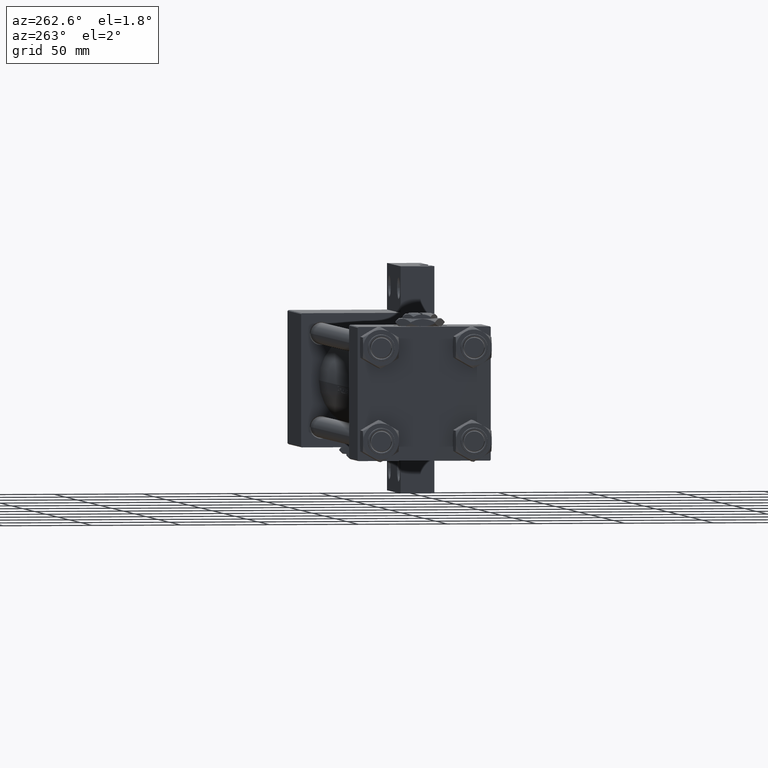
[diagram: clean part render]
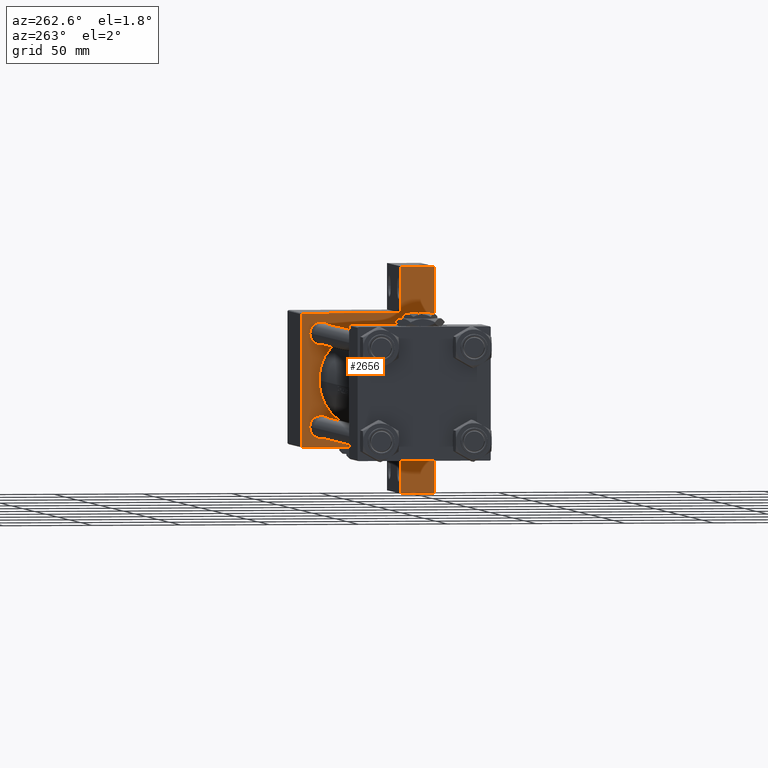
[diagram: same view with one face highlighted and labeled with its STEP entity id]
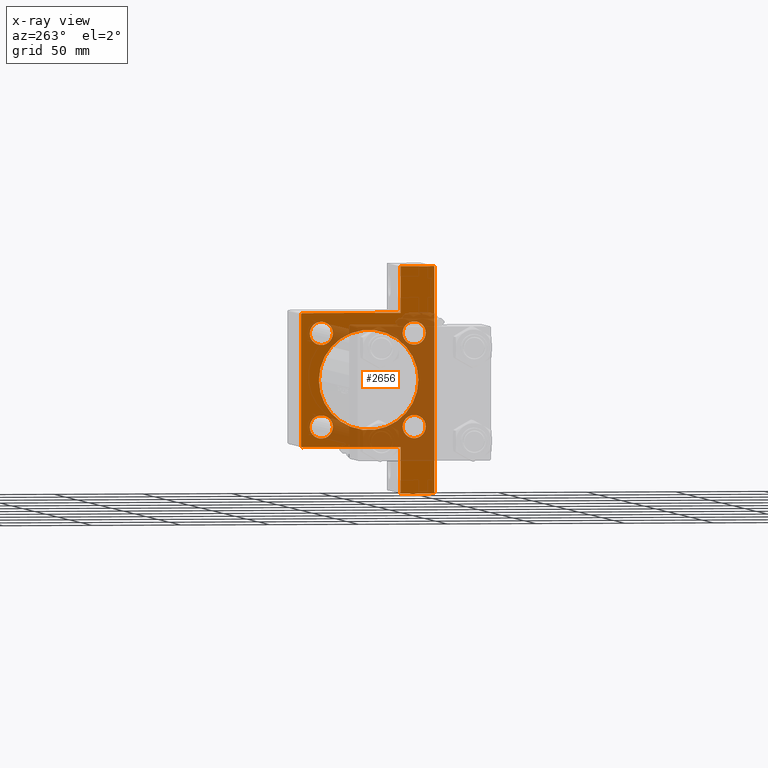
[diagram: x-ray of the same camera — body ghosted, the highlighted face saturated]
A machine part, auxiliary view. The second image highlights one B-rep face of the part: STEP entity #2656.
The next image is the same camera in x-ray: the body ghosted, the highlighted face saturated — about 46% of this face is hidden behind the body in this view.
In plain terms, the highlighted planar face has unit normal (-1, 0, 0).
Its self-contained STEP definition (entity closure, byte-faithful):
#689 = CIRCLE ( 'NONE', #2260, 6.500000000000008882 ) ;
#840 = VERTEX_POINT ( 'NONE', #5747 ) ;
#1247 = VECTOR ( 'NONE', #48644, 1000.000000000000000 ) ;
#1490 = CARTESIAN_POINT ( 'NONE',  ( 245.0000000000000000, -26.14999999999999147, 32.65000000000001990 ) ) ;
#1598 = EDGE_CURVE ( 'NONE', #31409, #20596, #44893, .T. ) ;
#1720 = VERTEX_POINT ( 'NONE', #1490 ) ;
#2252 = CARTESIAN_POINT ( 'NONE',  ( 245.0000000000000000, 6.123233995736772199E-17, -0.5000000000000004441 ) ) ;
#2260 = AXIS2_PLACEMENT_3D ( 'NONE', #44468, #21650, #44712 ) ;
#2367 = EDGE_CURVE ( 'NONE', #37820, #4611, #689, .T. ) ;
#2593 = CARTESIAN_POINT ( 'NONE',  ( 245.0000000000000284, 63.49999999999997158, -18.50000000000000000 ) ) ;
#2656 = ADVANCED_FACE ( 'NONE', ( #8206, #4456, #33597, #23505, #15982, #34779 ), #7020, .T. ) ;
#3023 = CARTESIAN_POINT ( 'NONE',  ( 245.0000000000000284, 63.49999999999997158, -18.50000000000000000 ) ) ;
#3617 = DIRECTION ( 'NONE',  ( 0.000000000000000000, -1.000000000000000000, -1.850371707708594316E-16 ) ) ;
#4013 = DIRECTION ( 'NONE',  ( 1.000000000000000000, 0.000000000000000000, -0.000000000000000000 ) ) ;
#4456 = FACE_BOUND ( 'NONE', #23475, .T. ) ;
#4611 = VERTEX_POINT ( 'NONE', #15467 ) ;
#4833 = DIRECTION ( 'NONE',  ( 1.000000000000000000, 0.000000000000000000, -0.000000000000000000 ) ) ;
#5747 = CARTESIAN_POINT ( 'NONE',  ( 245.0000000000000000, -37.00000000000000000, 37.49999999999997868 ) ) ;
#6019 = DIRECTION ( 'NONE',  ( 0.000000000000000000, 0.000000000000000000, -1.000000000000000000 ) ) ;
#6214 = CIRCLE ( 'NONE', #46220, 28.00000000000000000 ) ;
#7020 = PLANE ( 'NONE',  #7870 ) ;
#7242 = AXIS2_PLACEMENT_3D ( 'NONE', #8567, #4833, #34656 ) ;
#7327 = VERTEX_POINT ( 'NONE', #34489 ) ;
#7810 = CIRCLE ( 'NONE', #9413, 6.500000000000008882 ) ;
#7868 = CARTESIAN_POINT ( 'NONE',  ( 245.0000000000000000, 37.50000000000000000, 37.49999999999999289 ) ) ;
#7870 = AXIS2_PLACEMENT_3D ( 'NONE', #18565, #45139, #10551 ) ;
#8206 = FACE_BOUND ( 'NONE', #30526, .T. ) ;
#8256 = LINE ( 'NONE', #16278, #23603 ) ;
#8375 = ORIENTED_EDGE ( 'NONE', *, *, #28279, .T. ) ;
#8567 = CARTESIAN_POINT ( 'NONE',  ( 245.0000000000000000, -26.14999999999999147, -26.15000000000000924 ) ) ;
#8871 = ORIENTED_EDGE ( 'NONE', *, *, #44311, .T. ) ;
#9028 = LINE ( 'NONE', #25296, #20589 ) ;
#9118 = AXIS2_PLACEMENT_3D ( 'NONE', #30154, #14638, #10863 ) ;
#9183 = ORIENTED_EDGE ( 'NONE', *, *, #2367, .T. ) ;
#9413 = AXIS2_PLACEMENT_3D ( 'NONE', #45736, #31425, #15403 ) ;
#9552 = CARTESIAN_POINT ( 'NONE',  ( 245.0000000000000000, -37.50000000000000000, 36.99999999999995026 ) ) ;
#10319 = CARTESIAN_POINT ( 'NONE',  ( 245.0000000000000284, 63.49999999999997158, -18.50000000000000000 ) ) ;
#10551 = DIRECTION ( 'NONE',  ( 0.000000000000000000, 0.000000000000000000, 1.000000000000000000 ) ) ;
#10771 = DIRECTION ( 'NONE',  ( 0.000000000000000000, 0.000000000000000000, 1.000000000000000000 ) ) ;
#10863 = DIRECTION ( 'NONE',  ( 0.000000000000000000, 0.000000000000000000, -1.000000000000000000 ) ) ;
#11658 = DIRECTION ( 'NONE',  ( 0.000000000000000000, 0.000000000000000000, 1.000000000000000000 ) ) ;
#12164 = ORIENTED_EDGE ( 'NONE', *, *, #23077, .F. ) ;
#12713 = ORIENTED_EDGE ( 'NONE', *, *, #29225, .T. ) ;
#12802 = CARTESIAN_POINT ( 'NONE',  ( 245.0000000000000000, 6.123233995736772199E-17, 27.50000000000000000 ) ) ;
#12807 = VECTOR ( 'NONE', #34717, 1000.000000000000114 ) ;
#13025 = VERTEX_POINT ( 'NONE', #10319 ) ;
#13364 = CARTESIAN_POINT ( 'NONE',  ( 245.0000000000000000, 26.14999999999999858, 26.15000000000000213 ) ) ;
#14359 = EDGE_LOOP ( 'NONE', ( #8375, #9183 ) ) ;
#14381 = CIRCLE ( 'NONE', #33542, 6.500000000000008882 ) ;
#14433 = AXIS2_PLACEMENT_3D ( 'NONE', #37600, #4013, #10771 ) ;
#14638 = DIRECTION ( 'NONE',  ( 1.000000000000000000, 0.000000000000000000, 0.000000000000000000 ) ) ;
#15403 = DIRECTION ( 'NONE',  ( 0.000000000000000000, 0.000000000000000000, 1.000000000000000000 ) ) ;
#15467 = CARTESIAN_POINT ( 'NONE',  ( 245.0000000000000000, 26.14999999999999858, -19.64999999999999503 ) ) ;
#15982 = FACE_BOUND ( 'NONE', #43622, .T. ) ;
#16278 = CARTESIAN_POINT ( 'NONE',  ( 245.0000000000000000, 37.50000000000000000, 37.49999999999999289 ) ) ;
#16280 = CIRCLE ( 'NONE', #44301, 6.499999999999995559 ) ;
#16556 = EDGE_CURVE ( 'NONE', #40031, #13025, #40695, .T. ) ;
#17568 = CARTESIAN_POINT ( 'NONE',  ( 245.0000000000000000, 36.99999999999994316, 37.49999999999999289 ) ) ;
#17756 = EDGE_CURVE ( 'NONE', #7327, #20446, #16280, .T. ) ;
#18056 = DIRECTION ( 'NONE',  ( 0.000000000000000000, 1.000000000000000000, 0.000000000000000000 ) ) ;
#18565 = CARTESIAN_POINT ( 'NONE',  ( 245.0000000000000000, 0.000000000000000000, 0.000000000000000000 ) ) ;
#19260 = CARTESIAN_POINT ( 'NONE',  ( 245.0000000000000000, -26.14999999999999147, 19.65000000000000213 ) ) ;
#19275 = ORIENTED_EDGE ( 'NONE', *, *, #17756, .T. ) ;
#19419 = EDGE_CURVE ( 'NONE', #38102, #37944, #34623, .T. ) ;
#19822 = EDGE_LOOP ( 'NONE', ( #45425, #36419 ) ) ;
#19913 = EDGE_CURVE ( 'NONE', #31409, #24029, #25162, .T. ) ;
#20060 = CIRCLE ( 'NONE', #7242, 6.500000000000008882 ) ;
#20446 = VERTEX_POINT ( 'NONE', #37082 ) ;
#20530 = VERTEX_POINT ( 'NONE', #19260 ) ;
#20589 = VECTOR ( 'NONE', #24555, 1000.000000000000000 ) ;
#20596 = VERTEX_POINT ( 'NONE', #28488 ) ;
#21650 = DIRECTION ( 'NONE',  ( 1.000000000000000000, 0.000000000000000000, -0.000000000000000000 ) ) ;
#21697 = CARTESIAN_POINT ( 'NONE',  ( 245.0000000000000000, -26.14999999999999147, -32.65000000000002700 ) ) ;
#23077 = EDGE_CURVE ( 'NONE', #49435, #840, #34696, .T. ) ;
#23266 = ORIENTED_EDGE ( 'NONE', *, *, #19913, .F. ) ;
#23475 = EDGE_LOOP ( 'NONE', ( #41992, #19275 ) ) ;
#23505 = FACE_BOUND ( 'NONE', #19822, .T. ) ;
#23557 = DIRECTION ( 'NONE',  ( 0.000000000000000000, 0.000000000000000000, -1.000000000000000000 ) ) ;
#23603 = VECTOR ( 'NONE', #23557, 1000.000000000000000 ) ;
#23886 = ORIENTED_EDGE ( 'NONE', *, *, #41015, .T. ) ;
#23888 = VECTOR ( 'NONE', #43495, 1000.000000000000000 ) ;
#24029 = VERTEX_POINT ( 'NONE', #46240 ) ;
#24234 = CARTESIAN_POINT ( 'NONE',  ( 245.0000000000000000, 37.50000000000000000, -18.50000000000000355 ) ) ;
#24539 = VERTEX_POINT ( 'NONE', #44889 ) ;
#24555 = DIRECTION ( 'NONE',  ( 0.000000000000000000, -1.000000000000000000, 0.000000000000000000 ) ) ;
#24883 = EDGE_CURVE ( 'NONE', #24539, #40031, #8256, .T. ) ;
#25162 = LINE ( 'NONE', #40468, #32226 ) ;
#25296 = CARTESIAN_POINT ( 'NONE',  ( 245.0000000000000000, 37.50000000000000000, -37.50000000000000000 ) ) ;
#25378 = ORIENTED_EDGE ( 'NONE', *, *, #26414, .T. ) ;
#25769 = DIRECTION ( 'NONE',  ( 1.000000000000000000, 0.000000000000000000, -0.000000000000000000 ) ) ;
#26079 = ORIENTED_EDGE ( 'NONE', *, *, #24883, .T. ) ;
#26414 = EDGE_CURVE ( 'NONE', #13025, #46691, #40902, .T. ) ;
#28013 = DIRECTION ( 'NONE',  ( 1.000000000000000000, 0.000000000000000000, -0.000000000000000000 ) ) ;
#28279 = EDGE_CURVE ( 'NONE', #4611, #37820, #14381, .T. ) ;
#28488 = CARTESIAN_POINT ( 'NONE',  ( 245.0000000000000000, -37.50000000000000000, -18.50000000000000000 ) ) ;
#28632 = DIRECTION ( 'NONE',  ( 1.000000000000000000, 0.000000000000000000, -0.000000000000000000 ) ) ;
#29222 = EDGE_CURVE ( 'NONE', #37944, #38102, #6214, .T. ) ;
#29225 = EDGE_CURVE ( 'NONE', #46691, #24029, #9028, .T. ) ;
#29782 = CARTESIAN_POINT ( 'NONE',  ( 245.0000000000000000, 26.14999999999999858, -26.15000000000000213 ) ) ;
#30154 = CARTESIAN_POINT ( 'NONE',  ( 245.0000000000000000, 6.123233995736772199E-17, -0.5000000000000004441 ) ) ;
#30526 = EDGE_LOOP ( 'NONE', ( #32479, #37076 ) ) ;
#30982 = EDGE_CURVE ( 'NONE', #20530, #1720, #7810, .T. ) ;
#31289 = DIRECTION ( 'NONE',  ( 0.000000000000000000, 0.000000000000000000, 1.000000000000000000 ) ) ;
#31409 = VERTEX_POINT ( 'NONE', #33650 ) ;
#31425 = DIRECTION ( 'NONE',  ( 1.000000000000000000, 0.000000000000000000, -0.000000000000000000 ) ) ;
#32226 = VECTOR ( 'NONE', #36701, 1000.000000000000000 ) ;
#32479 = ORIENTED_EDGE ( 'NONE', *, *, #34271, .T. ) ;
#32635 = CARTESIAN_POINT ( 'NONE',  ( 245.0000000000000000, 3.490243377569955667E-15, -28.50000000000000000 ) ) ;
#32947 = VERTEX_POINT ( 'NONE', #39312 ) ;
#33542 = AXIS2_PLACEMENT_3D ( 'NONE', #29782, #25769, #41079 ) ;
#33597 = FACE_BOUND ( 'NONE', #14359, .T. ) ;
#33650 = CARTESIAN_POINT ( 'NONE',  ( 245.0000000000000000, -63.50000000000002842, -18.50000000000000000 ) ) ;
#34271 = EDGE_CURVE ( 'NONE', #1720, #20530, #43009, .T. ) ;
#34400 = AXIS2_PLACEMENT_3D ( 'NONE', #41995, #35210, #11658 ) ;
#34489 = CARTESIAN_POINT ( 'NONE',  ( 245.0000000000000000, 26.14999999999999858, 19.65000000000000568 ) ) ;
#34623 = CIRCLE ( 'NONE', #9118, 28.00000000000000000 ) ;
#34656 = DIRECTION ( 'NONE',  ( 0.000000000000000000, 0.000000000000000000, 1.000000000000000000 ) ) ;
#34696 = LINE ( 'NONE', #7868, #45933 ) ;
#34717 = DIRECTION ( 'NONE',  ( 0.000000000000000000, 0.7071067811865474617, -0.7071067811865474617 ) ) ;
#34779 = FACE_OUTER_BOUND ( 'NONE', #41386, .T. ) ;
#35207 = ORIENTED_EDGE ( 'NONE', *, *, #36169, .F. ) ;
#35210 = DIRECTION ( 'NONE',  ( 1.000000000000000000, 0.000000000000000000, -0.000000000000000000 ) ) ;
#36169 = EDGE_CURVE ( 'NONE', #49426, #20596, #40878, .T. ) ;
#36418 = CARTESIAN_POINT ( 'NONE',  ( 245.0000000000000000, 26.14999999999999858, -32.65000000000001279 ) ) ;
#36419 = ORIENTED_EDGE ( 'NONE', *, *, #46953, .T. ) ;
#36463 = LINE ( 'NONE', #44234, #23888 ) ;
#36473 = ORIENTED_EDGE ( 'NONE', *, *, #16556, .T. ) ;
#36701 = DIRECTION ( 'NONE',  ( 0.000000000000000000, 0.000000000000000000, -1.000000000000000000 ) ) ;
#37076 = ORIENTED_EDGE ( 'NONE', *, *, #30982, .T. ) ;
#37082 = CARTESIAN_POINT ( 'NONE',  ( 245.0000000000000000, 26.14999999999999858, 32.65000000000000568 ) ) ;
#37127 = CARTESIAN_POINT ( 'NONE',  ( 245.0000000000000000, -63.50000000000002842, -18.50000000000000000 ) ) ;
#37600 = CARTESIAN_POINT ( 'NONE',  ( 245.0000000000000000, 26.14999999999999858, 26.15000000000000213 ) ) ;
#37820 = VERTEX_POINT ( 'NONE', #36418 ) ;
#37944 = VERTEX_POINT ( 'NONE', #32635 ) ;
#38102 = VERTEX_POINT ( 'NONE', #12802 ) ;
#38107 = VECTOR ( 'NONE', #49113, 1000.000000000000000 ) ;
#38437 = CIRCLE ( 'NONE', #34400, 6.500000000000008882 ) ;
#39312 = CARTESIAN_POINT ( 'NONE',  ( 245.0000000000000000, -26.14999999999999147, -19.65000000000000213 ) ) ;
#40031 = VERTEX_POINT ( 'NONE', #24234 ) ;
#40266 = VECTOR ( 'NONE', #48689, 1000.000000000000000 ) ;
#40468 = CARTESIAN_POINT ( 'NONE',  ( 245.0000000000000000, -63.50000000000002842, -18.50000000000000000 ) ) ;
#40611 = AXIS2_PLACEMENT_3D ( 'NONE', #47334, #28013, #31289 ) ;
#40695 = LINE ( 'NONE', #2593, #40266 ) ;
#40878 = LINE ( 'NONE', #44883, #38107 ) ;
#40902 = LINE ( 'NONE', #3023, #1247 ) ;
#41015 = EDGE_CURVE ( 'NONE', #49426, #840, #36463, .T. ) ;
#41079 = DIRECTION ( 'NONE',  ( 0.000000000000000000, 0.000000000000000000, 1.000000000000000000 ) ) ;
#41249 = CARTESIAN_POINT ( 'NONE',  ( 245.0000000000000284, 63.49999999999997158, -37.50000000000000000 ) ) ;
#41386 = EDGE_LOOP ( 'NONE', ( #12164, #8871, #26079, #36473, #25378, #12713, #23266, #44219, #35207, #23886 ) ) ;
#41992 = ORIENTED_EDGE ( 'NONE', *, *, #45199, .T. ) ;
#41995 = CARTESIAN_POINT ( 'NONE',  ( 245.0000000000000000, -26.14999999999999147, -26.15000000000000924 ) ) ;
#42705 = ORIENTED_EDGE ( 'NONE', *, *, #29222, .T. ) ;
#42746 = LINE ( 'NONE', #46506, #12807 ) ;
#43009 = CIRCLE ( 'NONE', #40611, 6.500000000000008882 ) ;
#43495 = DIRECTION ( 'NONE',  ( -0.000000000000000000, 0.7071067811865279218, 0.7071067811865672237 ) ) ;
#43622 = EDGE_LOOP ( 'NONE', ( #44454, #42705 ) ) ;
#43881 = VECTOR ( 'NONE', #18056, 1000.000000000000000 ) ;
#43952 = DIRECTION ( 'NONE',  ( 0.000000000000000000, 0.000000000000000000, 1.000000000000000000 ) ) ;
#44219 = ORIENTED_EDGE ( 'NONE', *, *, #1598, .T. ) ;
#44234 = CARTESIAN_POINT ( 'NONE',  ( 245.0000000000000000, -37.25000000000100897, 37.24999999999894129 ) ) ;
#44301 = AXIS2_PLACEMENT_3D ( 'NONE', #13364, #28632, #43952 ) ;
#44308 = EDGE_CURVE ( 'NONE', #32947, #48888, #38437, .T. ) ;
#44311 = EDGE_CURVE ( 'NONE', #49435, #24539, #42746, .T. ) ;
#44454 = ORIENTED_EDGE ( 'NONE', *, *, #19419, .T. ) ;
#44468 = CARTESIAN_POINT ( 'NONE',  ( 245.0000000000000000, 26.14999999999999858, -26.15000000000000213 ) ) ;
#44712 = DIRECTION ( 'NONE',  ( 0.000000000000000000, 0.000000000000000000, 1.000000000000000000 ) ) ;
#44883 = CARTESIAN_POINT ( 'NONE',  ( 245.0000000000000000, -37.50000000000000000, 37.49999999999997868 ) ) ;
#44889 = CARTESIAN_POINT ( 'NONE',  ( 245.0000000000000000, 37.50000000000000000, 36.99999999999993605 ) ) ;
#44893 = LINE ( 'NONE', #37127, #43881 ) ;
#45139 = DIRECTION ( 'NONE',  ( -1.000000000000000000, -0.000000000000000000, 0.000000000000000000 ) ) ;
#45199 = EDGE_CURVE ( 'NONE', #20446, #7327, #46443, .T. ) ;
#45425 = ORIENTED_EDGE ( 'NONE', *, *, #44308, .T. ) ;
#45736 = CARTESIAN_POINT ( 'NONE',  ( 245.0000000000000000, -26.14999999999999147, 26.15000000000000924 ) ) ;
#45933 = VECTOR ( 'NONE', #3617, 1000.000000000000000 ) ;
#46220 = AXIS2_PLACEMENT_3D ( 'NONE', #2252, #47634, #6019 ) ;
#46240 = CARTESIAN_POINT ( 'NONE',  ( 245.0000000000000000, -63.50000000000002842, -37.50000000000000000 ) ) ;
#46443 = CIRCLE ( 'NONE', #14433, 6.499999999999995559 ) ;
#46506 = CARTESIAN_POINT ( 'NONE',  ( 245.0000000000000000, 37.24999999999996447, 37.24999999999996447 ) ) ;
#46691 = VERTEX_POINT ( 'NONE', #41249 ) ;
#46953 = EDGE_CURVE ( 'NONE', #48888, #32947, #20060, .T. ) ;
#47334 = CARTESIAN_POINT ( 'NONE',  ( 245.0000000000000000, -26.14999999999999147, 26.15000000000000924 ) ) ;
#47634 = DIRECTION ( 'NONE',  ( 1.000000000000000000, 0.000000000000000000, 0.000000000000000000 ) ) ;
#48644 = DIRECTION ( 'NONE',  ( 0.000000000000000000, 0.000000000000000000, -1.000000000000000000 ) ) ;
#48689 = DIRECTION ( 'NONE',  ( 1.067522139062651657E-15, 1.000000000000000000, -0.000000000000000000 ) ) ;
#48888 = VERTEX_POINT ( 'NONE', #21697 ) ;
#49113 = DIRECTION ( 'NONE',  ( 0.000000000000000000, -9.251858538542972814E-17, -1.000000000000000000 ) ) ;
#49426 = VERTEX_POINT ( 'NONE', #9552 ) ;
#49435 = VERTEX_POINT ( 'NONE', #17568 ) ;